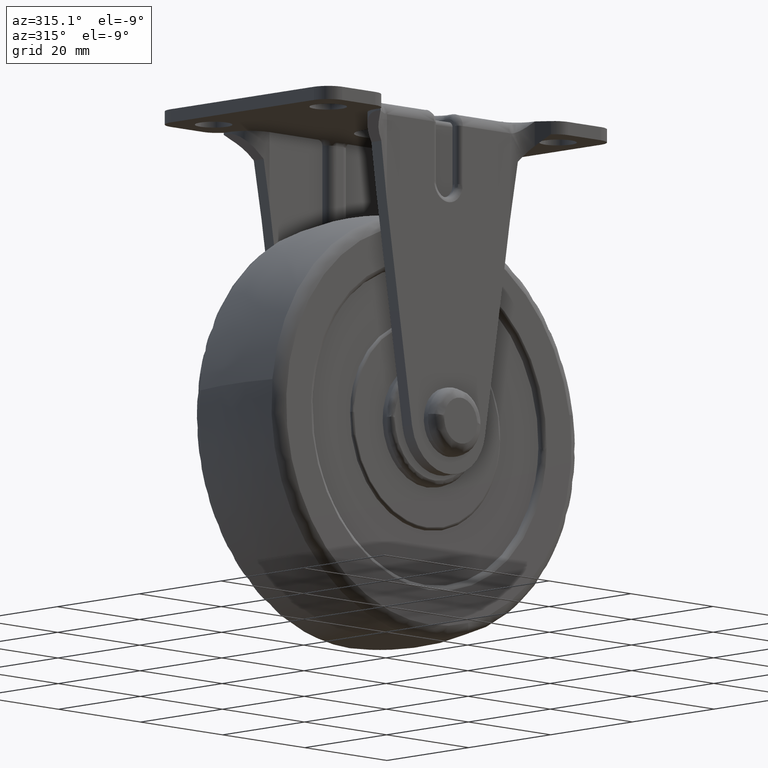
[diagram: clean part render]
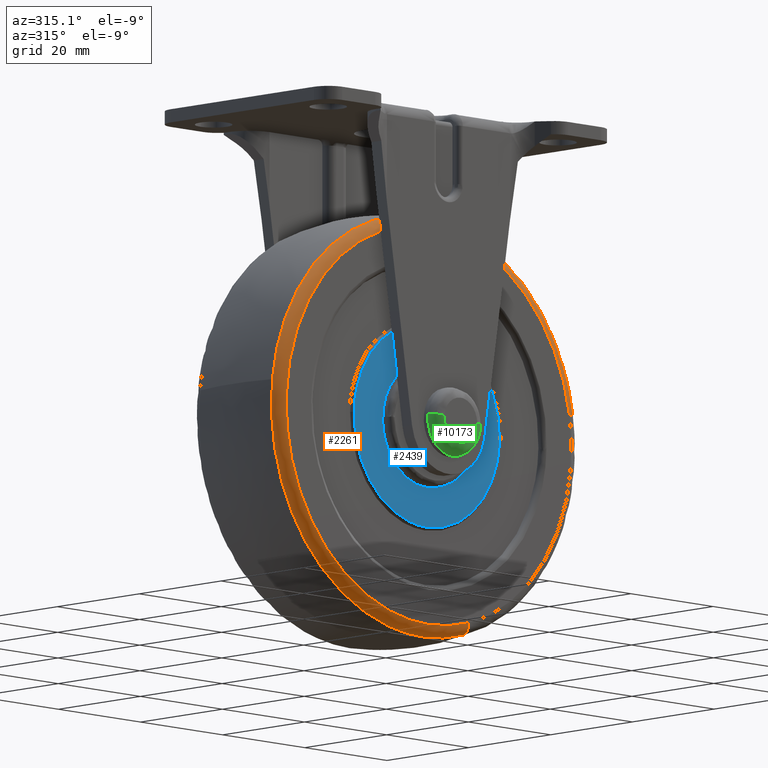
[diagram: same view with three faces highlighted in distinct colors, each labeled with its STEP entity id]
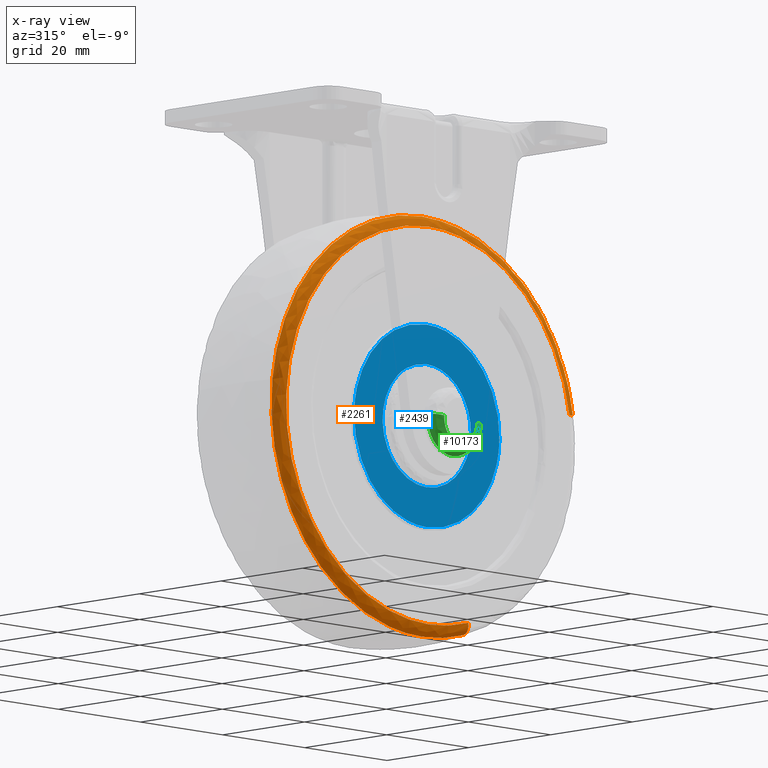
[diagram: x-ray of the same camera — body ghosted, the three highlighted faces saturated]
A machine part, auxiliary view with three faces highlighted in distinct colors.
The next image is the same camera in x-ray (body ghosted, the three faces saturated) — at least one of them is partly hidden behind the body in this view.
Their STEP definitions:

[orange] entity #2261 — the highlighted face is a freeform B-spline surface patch.
#2050=CARTESIAN_POINT('',(9.570434723366091,-10.499999999999940,-33.397186574668027));
#2051=VERTEX_POINT('',#2050);
#2052=CARTESIAN_POINT('',(34.278856995425983,-10.499999999999940,5.650243789186302));
#2053=VERTEX_POINT('',#2052);
#2069=CARTESIAN_POINT('',(10.112679845830209,-8.854166560661236,-35.289416348629373));
#2070=VERTEX_POINT('',#2069);
#2071=CARTESIAN_POINT('',(10.112679845830208,-8.854166560661236,-35.289416348629373));
#2072=CARTESIAN_POINT('',(10.031103170820018,-10.499999421205965,-35.004744699541618));
#2073=CARTESIAN_POINT('',(9.570434723366091,-10.499999999999940,-33.397186574668041));
#2081=(BOUNDED_CURVE()B_SPLINE_CURVE(2,(#2071,#2072,#2073),.UNSPECIFIED.,.F.,.U.)B_SPLINE_CURVE_WITH_KNOTS((3,3),(-1.706834369068990,-0.290855997036856),.UNSPECIFIED.)CURVE()GEOMETRIC_REPRESENTATION_ITEM()RATIONAL_B_SPLINE_CURVE((0.857224178663694,0.657882009826344,0.857875544032765))REPRESENTATION_ITEM(''));
#2082=EDGE_CURVE('',#2070,#2051,#2081,.T.);
#2084=CARTESIAN_POINT('',(36.221041102330183,-8.854163416198592,5.970377382871167));
#2085=VERTEX_POINT('',#2084);
#2101=CARTESIAN_POINT('',(36.221041102330176,-8.854163416198592,5.970377382871167));
#2102=CARTESIAN_POINT('',(35.928856563246185,-10.499999423787354,5.922216095650505));
#2103=CARTESIAN_POINT('',(34.278856995425976,-10.499999999999940,5.650243789186302));
#2111=(BOUNDED_CURVE()B_SPLINE_CURVE(2,(#2101,#2102,#2103),.UNSPECIFIED.,.F.,.U.)B_SPLINE_CURVE_WITH_KNOTS((3,3),(-1.706836109126086,-0.290855995331821),.UNSPECIFIED.)CURVE()GEOMETRIC_REPRESENTATION_ITEM()RATIONAL_B_SPLINE_CURVE((0.895848160298814,0.687523573927154,0.896528362368272))REPRESENTATION_ITEM(''));
#2112=EDGE_CURVE('',#2085,#2053,#2111,.T.);
#2117=CARTESIAN_POINT('',(36.239267967897682,-8.728840508037802,5.973381748909313));
#2118=CARTESIAN_POINT('',(30.265886218988360,-8.728840508037802,42.212649716806986));
#2119=CARTESIAN_POINT('',(-5.973381748909311,-8.728840508037802,36.239267967897682));
#2120=CARTESIAN_POINT('',(-42.212649716806986,-8.728840508037802,30.265886218988360));
#2121=CARTESIAN_POINT('',(-36.239267967897682,-8.728840508037802,-5.973381748909310));
#2122=CARTESIAN_POINT('',(-30.265886218988360,-8.728840508037802,-42.212649716806986));
#2123=CARTESIAN_POINT('',(5.973381748909307,-8.728840508037802,-36.239267967897682));
#2124=CARTESIAN_POINT('',(8.072570943417405,-8.728840508037802,-35.893254951489901));
#2125=CARTESIAN_POINT('',(10.117767890513576,-8.728840508037804,-35.307174983011464));
#2126=CARTESIAN_POINT('',(36.024785831171194,-10.616169513234572,5.938028284205667));
#2127=CARTESIAN_POINT('',(30.086757546965526,-10.616169513234572,41.962814115376865));
#2128=CARTESIAN_POINT('',(-5.938028284205664,-10.616169513234572,36.024785831171194));
#2129=CARTESIAN_POINT('',(-41.962814115376865,-10.616169513234572,30.086757546965526));
#2130=CARTESIAN_POINT('',(-36.024785831171194,-10.616169513234572,-5.938028284205663));
#2131=CARTESIAN_POINT('',(-30.086757546965526,-10.616169513234572,-41.962814115376865));
#2132=CARTESIAN_POINT('',(5.938028284205663,-10.616169513234572,-36.024785831171194));
#2133=CARTESIAN_POINT('',(8.024793425771241,-10.616169513234578,-35.680820693080399));
#2134=CARTESIAN_POINT('',(10.057885873084794,-10.616169513234574,-35.098209439368567));
#2135=CARTESIAN_POINT('',(34.154027922020006,-10.495994616986845,5.629667995000861));
#2136=CARTESIAN_POINT('',(28.524359927019141,-10.495994616986843,39.783695917020864));
#2137=CARTESIAN_POINT('',(-5.629667995000857,-10.495994616986845,34.154027922020006));
#2138=CARTESIAN_POINT('',(-39.783695917020864,-10.495994616986843,28.524359927019155));
#2139=CARTESIAN_POINT('',(-34.154027922020006,-10.495994616986845,-5.629667995000856));
#2140=CARTESIAN_POINT('',(-28.524359927019155,-10.495994616986843,-39.783695917020864));
#2141=CARTESIAN_POINT('',(5.629667995000854,-10.495994616986845,-34.154027922020006));
#2142=CARTESIAN_POINT('',(7.608067956786605,-10.495994616986843,-33.827924805526521));
#2143=CARTESIAN_POINT('',(9.535582433597517,-10.495994616986842,-33.275568405124595));
#2151=(BOUNDED_SURFACE()B_SPLINE_SURFACE(2,2,((#2117,#2126,#2135),(#2118,#2127,#2136),(#2119,#2128,#2137),(#2120,#2129,#2138),(#2121,#2130,#2139),(#2122,#2131,#2140),(#2123,#2132,#2141),(#2124,#2133,#2142),(#2125,#2134,#2143)),.UNSPECIFIED.,.F.,.F.,.U.)B_SPLINE_SURFACE_WITH_KNOTS((3,2,2,2,3),(3,3),(0.0,60.853390568270711,121.706781136541390,182.560171704812210,187.428441934673290),(0.0,3.193964959743093),.UNSPECIFIED.)GEOMETRIC_REPRESENTATION_ITEM()RATIONAL_B_SPLINE_SURFACE(((0.917701442166205,0.665636364178354,0.918449499708622),(0.648912912860398,0.470675986914873,0.649441869421358),(0.917701442166205,0.665636364178354,0.918449499708622),(0.648912912860398,0.470675986914873,0.649441869421358),(0.917701442166205,0.665636364178354,0.918449499708622),(0.648912912860398,0.470675986914873,0.649441869421358),(0.917701442166205,0.665636364178354,0.918449499708622),(0.896198364307633,0.650039537251028,0.896928893775190),(0.878135778188690,0.636938202111474,0.878851584072779)))REPRESENTATION_ITEM('')SURFACE());
#2152=CARTESIAN_POINT('',(0.0,-10.500000000000000,-34.741406003723299));
#2153=VERTEX_POINT('',#2152);
#2154=CARTESIAN_POINT('',(0.0,-10.500000000000000,-34.741406003723299));
#2155=CARTESIAN_POINT('',(4.879618814083505,-10.500000000000000,-34.741406003723306));
#2156=CARTESIAN_POINT('',(9.570434723366091,-10.499999999999940,-33.397186574668034));
#2164=(BOUNDED_CURVE()B_SPLINE_CURVE(2,(#2154,#2155,#2156),.UNSPECIFIED.,.F.,.U.)B_SPLINE_CURVE_WITH_KNOTS((3,3),(0.0,0.046928272030848),.UNSPECIFIED.)CURVE()GEOMETRIC_REPRESENTATION_ITEM()RATIONAL_B_SPLINE_CURVE((1.0,0.945020109406127,0.910681108908378))REPRESENTATION_ITEM(''));
#2165=EDGE_CURVE('',#2153,#2051,#2164,.T.);
#2166=ORIENTED_EDGE('',*,*,#2165,.F.);
#2167=CARTESIAN_POINT('',(0.0,-10.500000000000000,34.741406003723299));
#2168=VERTEX_POINT('',#2167);
#2169=CARTESIAN_POINT('',(0.0,-10.500000000000000,34.741406003723299));
#2170=CARTESIAN_POINT('',(-34.741406003723299,-10.500000000000002,34.741406003723299));
#2171=CARTESIAN_POINT('',(-34.741406003723299,-10.500000000000000,1.211545E-015));
#2172=CARTESIAN_POINT('',(-34.741406003723299,-10.500000000000002,-34.741406003723299));
#2173=CARTESIAN_POINT('',(0.0,-10.500000000000000,-34.741406003723299));
#2181=(BOUNDED_CURVE()B_SPLINE_CURVE(2,(#2169,#2170,#2171,#2172,#2173),.UNSPECIFIED.,.F.,.U.)B_SPLINE_CURVE_WITH_KNOTS((3,2,3),(0.500000000000000,0.750000000000000,1.0),.UNSPECIFIED.)CURVE()GEOMETRIC_REPRESENTATION_ITEM()RATIONAL_B_SPLINE_CURVE((1.0,0.707106781186548,1.0,0.707106781186548,1.0))REPRESENTATION_ITEM(''));
#2182=EDGE_CURVE('',#2168,#2153,#2181,.T.);
#2183=ORIENTED_EDGE('',*,*,#2182,.F.);
#2184=CARTESIAN_POINT('',(34.278856995425976,-10.499999999999940,5.650243789186302));
#2185=CARTESIAN_POINT('',(29.483709975488914,-10.500000000000000,34.741406003723299));
#2186=CARTESIAN_POINT('',(0.0,-10.500000000000000,34.741406003723299));
#2194=(BOUNDED_CURVE()B_SPLINE_CURVE(2,(#2184,#2185,#2186),.UNSPECIFIED.,.F.,.U.)B_SPLINE_CURVE_WITH_KNOTS((3,3),(0.277993891203205,0.500000000000000),.UNSPECIFIED.)CURVE()GEOMETRIC_REPRESENTATION_ITEM()RATIONAL_B_SPLINE_CURVE((0.941751131918910,0.739903664793028,1.0))REPRESENTATION_ITEM(''));
#2195=EDGE_CURVE('',#2053,#2168,#2194,.T.);
#2196=ORIENTED_EDGE('',*,*,#2195,.F.);
#2197=ORIENTED_EDGE('',*,*,#2112,.F.);
#2198=CARTESIAN_POINT('',(0.0,-8.854160999954726,36.709798075842002));
#2199=VERTEX_POINT('',#2198);
#2200=CARTESIAN_POINT('',(36.221041102330176,-8.854163416198592,5.970377382871167));
#2201=CARTESIAN_POINT('',(31.154209102596162,-8.854160999954724,36.709798075842002));
#2202=CARTESIAN_POINT('',(0.0,-8.854160999954726,36.709798075842002));
#2210=(BOUNDED_CURVE()B_SPLINE_CURVE(2,(#2200,#2201,#2202),.UNSPECIFIED.,.F.,.U.)B_SPLINE_CURVE_WITH_KNOTS((3,3),(0.277993888548403,0.500000000000000),.UNSPECIFIED.)CURVE()GEOMETRIC_REPRESENTATION_ITEM()RATIONAL_B_SPLINE_CURVE((0.941751136746390,0.739903661682735,1.0))REPRESENTATION_ITEM(''));
#2211=EDGE_CURVE('',#2085,#2199,#2210,.T.);
#2212=ORIENTED_EDGE('',*,*,#2211,.T.);
#2213=CARTESIAN_POINT('',(-36.464271100865403,-8.854163213005258,4.238652924782500));
#2214=VERTEX_POINT('',#2213);
#2215=CARTESIAN_POINT('',(0.0,-8.854160999954726,36.709798075842002));
#2216=CARTESIAN_POINT('',(-32.689783981103403,-8.854162106479993,36.709797601920478));
#2217=CARTESIAN_POINT('',(-36.464271100865403,-8.854163213005258,4.238652924782500));
#2225=(BOUNDED_CURVE()B_SPLINE_CURVE(2,(#2215,#2216,#2217),.UNSPECIFIED.,.F.,.U.)B_SPLINE_CURVE_WITH_KNOTS((3,3),(0.500000000000000,0.730000072241216),.UNSPECIFIED.)CURVE()GEOMETRIC_REPRESENTATION_ITEM()RATIONAL_B_SPLINE_CURVE((1.0,0.730538154055775,0.956886260378935))REPRESENTATION_ITEM(''));
#2226=EDGE_CURVE('',#2199,#2214,#2225,.T.);
#2227=ORIENTED_EDGE('',*,*,#2226,.T.);
#2228=CARTESIAN_POINT('',(0.0,-8.854166666666620,-36.709797056249400));
#2229=VERTEX_POINT('',#2228);
#2230=CARTESIAN_POINT('',(-36.464271100865403,-8.854163213005258,4.238652924782500));
#2231=CARTESIAN_POINT('',(-36.709797657576779,-8.854163302079160,2.126437635255870));
#2232=CARTESIAN_POINT('',(-36.709797639699580,-8.854163402106890,0.000000067820988));
#2233=CARTESIAN_POINT('',(-36.709797331076132,-8.854165128937567,-36.709797024303192));
#2234=CARTESIAN_POINT('',(0.0,-8.854166666666620,-36.709797056249400));
#2242=(BOUNDED_CURVE()B_SPLINE_CURVE(2,(#2230,#2231,#2232,#2233,#2234),.UNSPECIFIED.,.F.,.U.)B_SPLINE_CURVE_WITH_KNOTS((3,2,3),(0.730000072241216,0.750000000000000,1.0),.UNSPECIFIED.)CURVE()GEOMETRIC_REPRESENTATION_ITEM()RATIONAL_B_SPLINE_CURVE((0.956886260378935,0.976568627130773,1.0,0.707106781186548,1.0))REPRESENTATION_ITEM(''));
#2243=EDGE_CURVE('',#2214,#2229,#2242,.T.);
#2244=ORIENTED_EDGE('',*,*,#2243,.T.);
#2245=CARTESIAN_POINT('',(0.0,-8.854166666666620,-36.709797056249400));
#2246=CARTESIAN_POINT('',(5.156090005455261,-8.854166666666618,-36.709797056249400));
#2247=CARTESIAN_POINT('',(10.112679845830208,-8.854166560661236,-35.289416348629373));
#2255=(BOUNDED_CURVE()B_SPLINE_CURVE(2,(#2245,#2246,#2247),.UNSPECIFIED.,.F.,.U.)B_SPLINE_CURVE_WITH_KNOTS((3,3),(0.0,0.046928272004704),.UNSPECIFIED.)CURVE()GEOMETRIC_REPRESENTATION_ITEM()RATIONAL_B_SPLINE_CURVE((1.0,0.945020109436757,0.910681108946639))REPRESENTATION_ITEM(''));
#2256=EDGE_CURVE('',#2229,#2070,#2255,.T.);
#2257=ORIENTED_EDGE('',*,*,#2256,.T.);
#2258=ORIENTED_EDGE('',*,*,#2082,.T.);
#2259=EDGE_LOOP('',(#2166,#2183,#2196,#2197,#2212,#2227,#2244,#2257,#2258));
#2260=FACE_OUTER_BOUND('',#2259,.T.);
#2261=ADVANCED_FACE('',(#2260),#2151,.T.);

[blue] entity #2439 — the highlighted face is a freeform B-spline surface patch.
#66=CARTESIAN_POINT('',(-7.034148510529811,-9.999999999999623,-8.129160764297716));
#67=VERTEX_POINT('',#66);
#68=CARTESIAN_POINT('',(0.0,-10.0,-10.750000000000000));
#69=VERTEX_POINT('',#68);
#70=CARTESIAN_POINT('',(-7.034148510529811,-9.999999999999623,-8.129160764297716));
#71=CARTESIAN_POINT('',(-4.005320863160247,-9.999999999999998,-10.750000000000000));
#72=CARTESIAN_POINT('',(0.0,-10.0,-10.750000000000000));
#80=(BOUNDED_CURVE()B_SPLINE_CURVE(2,(#70,#71,#72),.UNSPECIFIED.,.F.,.U.)B_SPLINE_CURVE_WITH_KNOTS((3,3),(0.885882172029833,1.0),.UNSPECIFIED.)CURVE()GEOMETRIC_REPRESENTATION_ITEM()RATIONAL_B_SPLINE_CURVE((0.854663307506657,0.866302648167272,1.0))REPRESENTATION_ITEM(''));
#81=EDGE_CURVE('',#67,#69,#80,.T.);
#83=CARTESIAN_POINT('',(0.0,-10.0,10.750000000000000));
#84=VERTEX_POINT('',#83);
#85=CARTESIAN_POINT('',(0.0,-10.0,-10.750000000000000));
#86=CARTESIAN_POINT('',(10.750000000000000,-10.000000000000002,-10.749999999999998));
#87=CARTESIAN_POINT('',(10.750000000000000,-10.0,1.211545E-015));
#88=CARTESIAN_POINT('',(10.750000000000000,-10.000000000000002,10.750000000000000));
#89=CARTESIAN_POINT('',(0.0,-10.0,10.750000000000000));
#97=(BOUNDED_CURVE()B_SPLINE_CURVE(2,(#85,#86,#87,#88,#89),.UNSPECIFIED.,.F.,.U.)B_SPLINE_CURVE_WITH_KNOTS((3,2,3),(0.0,0.250000000000000,0.500000000000000),.UNSPECIFIED.)CURVE()GEOMETRIC_REPRESENTATION_ITEM()RATIONAL_B_SPLINE_CURVE((1.0,0.707106781186548,1.0,0.707106781186548,1.0))REPRESENTATION_ITEM(''));
#98=EDGE_CURVE('',#69,#84,#97,.T.);
#100=CARTESIAN_POINT('',(-7.262593903906474,-10.0,7.925732129395948));
#101=VERTEX_POINT('',#100);
#102=CARTESIAN_POINT('',(0.0,-10.0,10.750000000000000));
#103=CARTESIAN_POINT('',(-4.180445721006389,-9.999999999999998,10.750000000000000));
#104=CARTESIAN_POINT('',(-7.262593903906474,-10.0,7.925732129395949));
#112=(BOUNDED_CURVE()B_SPLINE_CURVE(2,(#102,#103,#104),.UNSPECIFIED.,.F.,.U.)B_SPLINE_CURVE_WITH_KNOTS((3,3),(0.500000000000000,0.618415193314011),.UNSPECIFIED.)CURVE()GEOMETRIC_REPRESENTATION_ITEM()RATIONAL_B_SPLINE_CURVE((1.0,0.861267971495369,0.853959782784504))REPRESENTATION_ITEM(''));
#113=EDGE_CURVE('',#84,#101,#112,.T.);
#210=CARTESIAN_POINT('',(-7.262593903906474,-10.0,7.925732129395949));
#211=CARTESIAN_POINT('',(-10.750000000000000,-10.0,4.730113877298298));
#212=CARTESIAN_POINT('',(-10.750000000000000,-10.0,1.211545E-015));
#213=CARTESIAN_POINT('',(-10.750000000000002,-10.000000000000002,-4.913841006470554));
#214=CARTESIAN_POINT('',(-7.034148510529811,-9.999999999999623,-8.129160764297716));
#222=(BOUNDED_CURVE()B_SPLINE_CURVE(2,(#210,#211,#212,#213,#214),.UNSPECIFIED.,.F.,.U.)B_SPLINE_CURVE_WITH_KNOTS((3,2,3),(0.618415193314011,0.750000000000000,0.885882172029833),.UNSPECIFIED.)CURVE()GEOMETRIC_REPRESENTATION_ITEM()RATIONAL_B_SPLINE_CURVE((0.853959782784504,0.845838809691179,1.0,0.840804133019275,0.854663307506657))REPRESENTATION_ITEM(''));
#223=EDGE_CURVE('',#101,#67,#222,.T.);
#921=CARTESIAN_POINT('',(17.694411160923838,-10.000000000000050,-0.444802714950241));
#922=VERTEX_POINT('',#921);
#936=CARTESIAN_POINT('',(0.0,-10.0,-17.700001000000000));
#937=VERTEX_POINT('',#936);
#938=CARTESIAN_POINT('',(0.0,-10.0,-17.700001000000000));
#939=CARTESIAN_POINT('',(17.260649383188348,-10.0,-17.700000999999993));
#940=CARTESIAN_POINT('',(17.694411160923842,-10.000000000000053,-0.444802714950241));
#948=(BOUNDED_CURVE()B_SPLINE_CURVE(2,(#938,#939,#940),.UNSPECIFIED.,.F.,.U.)B_SPLINE_CURVE_WITH_KNOTS((3,3),(0.0,0.245579891765885),.UNSPECIFIED.)CURVE()GEOMETRIC_REPRESENTATION_ITEM()RATIONAL_B_SPLINE_CURVE((1.0,0.712285260099322,0.989826157672711))REPRESENTATION_ITEM(''));
#949=EDGE_CURVE('',#937,#922,#948,.T.);
#951=CARTESIAN_POINT('',(-17.694411160923849,-10.000000000000050,0.444802714950241));
#952=VERTEX_POINT('',#951);
#953=CARTESIAN_POINT('',(-17.694411160923849,-10.000000000000053,0.444802714950241));
#954=CARTESIAN_POINT('',(-17.700000999999997,-9.999999999999998,0.222436481349253));
#955=CARTESIAN_POINT('',(-17.700001000000000,-10.0,1.211545E-015));
#956=CARTESIAN_POINT('',(-17.700000999999997,-10.000000000000002,-17.700000999999997));
#957=CARTESIAN_POINT('',(0.0,-10.0,-17.700001000000000));
#965=(BOUNDED_CURVE()B_SPLINE_CURVE(2,(#953,#954,#955,#956,#957),.UNSPECIFIED.,.F.,.U.)B_SPLINE_CURVE_WITH_KNOTS((3,2,3),(0.745579891765885,0.750000000000000,1.0),.UNSPECIFIED.)CURVE()GEOMETRIC_REPRESENTATION_ITEM()RATIONAL_B_SPLINE_CURVE((0.989826157672711,0.994821521087225,1.0,0.707106781186548,1.0))REPRESENTATION_ITEM(''));
#966=EDGE_CURVE('',#952,#937,#965,.T.);
#1023=CARTESIAN_POINT('',(0.0,-10.0,17.700001000000000));
#1024=VERTEX_POINT('',#1023);
#1025=CARTESIAN_POINT('',(0.0,-10.0,17.700001000000000));
#1026=CARTESIAN_POINT('',(-17.260649383188387,-10.0,17.700001000000007));
#1027=CARTESIAN_POINT('',(-17.694411160923845,-10.000000000000053,0.444802714950241));
#1035=(BOUNDED_CURVE()B_SPLINE_CURVE(2,(#1025,#1026,#1027),.UNSPECIFIED.,.F.,.U.)B_SPLINE_CURVE_WITH_KNOTS((3,3),(0.500000000000000,0.745579891765886),.UNSPECIFIED.)CURVE()GEOMETRIC_REPRESENTATION_ITEM()RATIONAL_B_SPLINE_CURVE((1.0,0.712285260099322,0.989826157672712))REPRESENTATION_ITEM(''));
#1036=EDGE_CURVE('',#1024,#952,#1035,.T.);
#1038=CARTESIAN_POINT('',(17.694411160923842,-10.000000000000053,-0.444802714950241));
#1039=CARTESIAN_POINT('',(17.700001000000000,-9.999999999999998,-0.222436481349253));
#1040=CARTESIAN_POINT('',(17.700001000000000,-10.0,1.211545E-015));
#1041=CARTESIAN_POINT('',(17.700000999999997,-10.000000000000002,17.700000999999997));
#1042=CARTESIAN_POINT('',(0.0,-10.0,17.700001000000000));
#1050=(BOUNDED_CURVE()B_SPLINE_CURVE(2,(#1038,#1039,#1040,#1041,#1042),.UNSPECIFIED.,.F.,.U.)B_SPLINE_CURVE_WITH_KNOTS((3,2,3),(0.245579891765885,0.250000000000000,0.500000000000000),.UNSPECIFIED.)CURVE()GEOMETRIC_REPRESENTATION_ITEM()RATIONAL_B_SPLINE_CURVE((0.989826157672711,0.994821521087225,1.0,0.707106781186548,1.0))REPRESENTATION_ITEM(''));
#1051=EDGE_CURVE('',#922,#1024,#1050,.T.);
#2422=CARTESIAN_POINT('',(-19.462081976466109,-10.0,19.468231031287932));
#2423=CARTESIAN_POINT('',(-19.462081976466109,-10.0,-19.468231980789970));
#2424=CARTESIAN_POINT('',(19.462081027263931,-10.0,19.468231031287932));
#2425=CARTESIAN_POINT('',(19.462081027263931,-10.0,-19.468231980789970));
#2426=B_SPLINE_SURFACE_WITH_KNOTS('',1,1,((#2422,#2424),(#2423,#2425)),.UNSPECIFIED.,.F.,.F.,.U.,(2,2),(2,2),(0.0,38.936463012077887),(0.0,38.924163003730037),.UNSPECIFIED.);
#2427=ORIENTED_EDGE('',*,*,#949,.T.);
#2428=ORIENTED_EDGE('',*,*,#1051,.T.);
#2429=ORIENTED_EDGE('',*,*,#1036,.T.);
#2430=ORIENTED_EDGE('',*,*,#966,.T.);
#2431=EDGE_LOOP('',(#2427,#2428,#2429,#2430));
#2432=FACE_OUTER_BOUND('',#2431,.T.);
#2433=ORIENTED_EDGE('',*,*,#98,.F.);
#2434=ORIENTED_EDGE('',*,*,#81,.F.);
#2435=ORIENTED_EDGE('',*,*,#223,.F.);
#2436=ORIENTED_EDGE('',*,*,#113,.F.);
#2437=EDGE_LOOP('',(#2433,#2434,#2435,#2436));
#2438=FACE_BOUND('',#2437,.T.);
#2439=ADVANCED_FACE('',(#2432,#2438),#2426,.T.);

[green] entity #10173 — the highlighted face is a freeform B-spline surface patch.
#9504=CARTESIAN_POINT('',(3.735085302261918,-16.300003628506129,-4.695650943672648));
#9505=VERTEX_POINT('',#9504);
#9506=CARTESIAN_POINT('',(5.999999999999696,-16.300003629176839,-9.326167E-014));
#9507=VERTEX_POINT('',#9506);
#9508=CARTESIAN_POINT('',(3.735085302261918,-16.300003628506126,-4.695650943672648));
#9509=CARTESIAN_POINT('',(5.999999999999609,-16.300003628762845,-2.894058427561166));
#9510=CARTESIAN_POINT('',(5.999999999999696,-16.300003629176839,-9.326167E-014));
#9518=(BOUNDED_CURVE()B_SPLINE_CURVE(2,(#9508,#9509,#9510),.UNSPECIFIED.,.F.,.U.)B_SPLINE_CURVE_WITH_KNOTS((3,3),(0.107863796232113,0.249999999999995),.UNSPECIFIED.)CURVE()GEOMETRIC_REPRESENTATION_ITEM()RATIONAL_B_SPLINE_CURVE((0.856305644714089,0.833477079073996,0.999999999999987))REPRESENTATION_ITEM(''));
#9519=EDGE_CURVE('',#9505,#9507,#9518,.T.);
#9562=CARTESIAN_POINT('',(-4.695650918952271,-16.300003628318549,-3.735085333339771));
#9563=VERTEX_POINT('',#9562);
#9569=CARTESIAN_POINT('',(-5.959869832689594,-16.300003629149341,0.692785376139581));
#9570=VERTEX_POINT('',#9569);
#9571=CARTESIAN_POINT('',(-5.959869832689594,-16.300003629149337,0.692785376139581));
#9572=CARTESIAN_POINT('',(-5.999999999999701,-16.300003628318549,0.347554974766209));
#9573=CARTESIAN_POINT('',(-5.999999999999700,-16.300003628318549,1.647096E-015));
#9574=CARTESIAN_POINT('',(-5.999999999999701,-16.300003628318546,-2.095292018209868));
#9575=CARTESIAN_POINT('',(-4.695650918952271,-16.300003628318557,-3.735085333339771));
#9583=(BOUNDED_CURVE()B_SPLINE_CURVE(2,(#9571,#9572,#9573,#9574,#9575),.UNSPECIFIED.,.F.,.U.)B_SPLINE_CURVE_WITH_KNOTS((3,2,3),(0.729999999989943,0.750000000000000,0.857863797233977),.UNSPECIFIED.)CURVE()GEOMETRIC_REPRESENTATION_ITEM()RATIONAL_B_SPLINE_CURVE((0.956886118170865,0.976568542483141,1.0,0.873629700938795,0.856305644392269))REPRESENTATION_ITEM(''));
#9584=EDGE_CURVE('',#9570,#9563,#9583,.T.);
#9631=CARTESIAN_POINT('',(0.0,-16.300003628318549,-5.999999999999698));
#9632=VERTEX_POINT('',#9631);
#9633=CARTESIAN_POINT('',(0.0,-16.300003628318549,-5.999999999999698));
#9634=CARTESIAN_POINT('',(2.095291995933193,-16.300003628318553,-5.999999999999698));
#9635=CARTESIAN_POINT('',(3.735085302261918,-16.300003628506126,-4.695650943672648));
#9643=(BOUNDED_CURVE()B_SPLINE_CURVE(2,(#9633,#9634,#9635),.UNSPECIFIED.,.F.,.U.)B_SPLINE_CURVE_WITH_KNOTS((3,3),(0.0,0.107863796232113),.UNSPECIFIED.)CURVE()GEOMETRIC_REPRESENTATION_ITEM()RATIONAL_B_SPLINE_CURVE((1.0,0.873629702112552,0.856305644714089))REPRESENTATION_ITEM(''));
#9644=EDGE_CURVE('',#9632,#9505,#9643,.T.);
#9646=CARTESIAN_POINT('',(-4.695650918952271,-16.300003628318557,-3.735085333339771));
#9647=CARTESIAN_POINT('',(-2.894058403086417,-16.300003628318549,-5.999999999999698));
#9648=CARTESIAN_POINT('',(0.0,-16.300003628318549,-5.999999999999698));
#9656=(BOUNDED_CURVE()B_SPLINE_CURVE(2,(#9646,#9647,#9648),.UNSPECIFIED.,.F.,.U.)B_SPLINE_CURVE_WITH_KNOTS((3,3),(0.857863797233977,1.0),.UNSPECIFIED.)CURVE()GEOMETRIC_REPRESENTATION_ITEM()RATIONAL_B_SPLINE_CURVE((0.856305644392269,0.833477080247752,1.0))REPRESENTATION_ITEM(''));
#9657=EDGE_CURVE('',#9563,#9632,#9656,.T.);
#10078=CARTESIAN_POINT('',(-5.955086818130266,-16.161301849070693,0.692228709683873));
#10079=CARTESIAN_POINT('',(-5.995184700906173,-16.161301849070689,0.347275705260244));
#10080=CARTESIAN_POINT('',(-5.995184700906175,-16.161301849070689,2.101811E-015));
#10081=CARTESIAN_POINT('',(-5.995184700906175,-16.161301849070693,-5.995184700906171));
#10082=CARTESIAN_POINT('',(-7.341741E-016,-16.161301849070689,-5.995184700906172));
#10083=CARTESIAN_POINT('',(5.995184700906173,-16.161301849070693,-5.995184700906173));
#10084=CARTESIAN_POINT('',(5.995184700906175,-16.161301849070689,6.334623E-016));
#10085=CARTESIAN_POINT('',(-6.113506785808837,-18.455481543839948,0.710643697267333));
#10086=CARTESIAN_POINT('',(-6.154671370966647,-18.455481543839948,0.356514093831740));
#10087=CARTESIAN_POINT('',(-6.154671370966645,-18.455481543839941,2.111576E-015));
#10088=CARTESIAN_POINT('',(-6.154671370966647,-18.455481543839941,-6.154671370966642));
#10089=CARTESIAN_POINT('',(-7.537050E-016,-18.455481543839941,-6.154671370966645));
#10090=CARTESIAN_POINT('',(6.154671370966647,-18.455481543839941,-6.154671370966645));
#10091=CARTESIAN_POINT('',(6.154671370966645,-18.455481543839941,6.041660E-016));
#10092=CARTESIAN_POINT('',(-3.834730858931828,-18.295135611118525,0.445755179652738));
#10093=CARTESIAN_POINT('',(-3.860551572072476,-18.295135611118514,0.223625432204345));
#10094=CARTESIAN_POINT('',(-3.860551572072478,-18.295135611118521,1.971106E-015));
#10095=CARTESIAN_POINT('',(-3.860551572072478,-18.295135611118511,-3.860551572072474));
#10096=CARTESIAN_POINT('',(-4.727656E-016,-18.295135611118521,-3.860551572072474));
#10097=CARTESIAN_POINT('',(3.860551572072475,-18.295135611118511,-3.860551572072474));
#10098=CARTESIAN_POINT('',(3.860551572072478,-18.295135611118521,1.025575E-015));
#10106=(BOUNDED_SURFACE()B_SPLINE_SURFACE(2,2,((#10078,#10085,#10092),(#10079,#10086,#10093),(#10080,#10087,#10094),(#10081,#10088,#10095),(#10082,#10089,#10096),(#10083,#10090,#10097),(#10084,#10091,#10098)),.UNSPECIFIED.,.F.,.F.,.U.)B_SPLINE_SURFACE_WITH_KNOTS((3,2,2,3),(3,3),(0.0,0.794651022016055,10.727798270204151,20.660945518392250),(0.0,3.644740725018497),.UNSPECIFIED.)GEOMETRIC_REPRESENTATION_ITEM()RATIONAL_B_SPLINE_SURFACE(((0.876475779619699,0.573569932033053,0.871620856583481),(0.894504209402347,0.585367822500240,0.889549424349295),(0.915966621911565,0.599412927647948,0.910892953526734),(0.647686209694202,0.423848945870745,0.644098584373797),(0.915966621911565,0.599412927647948,0.910892953526734),(0.647686209694202,0.423848945870745,0.644098584373797),(0.915966621911565,0.599412927647948,0.910892953526734)))REPRESENTATION_ITEM('')SURFACE());
#10107=ORIENTED_EDGE('',*,*,#9584,.T.);
#10108=ORIENTED_EDGE('',*,*,#9657,.T.);
#10109=ORIENTED_EDGE('',*,*,#9644,.T.);
#10110=ORIENTED_EDGE('',*,*,#9519,.T.);
#10111=CARTESIAN_POINT('',(4.000000000185819,-18.300003000000000,1.773286E-015));
#10112=VERTEX_POINT('',#10111);
#10113=CARTESIAN_POINT('',(5.999999999999696,-16.300003629176835,-9.326167E-014));
#10114=CARTESIAN_POINT('',(5.999999369964767,-18.300002999627953,1.748501E-015));
#10115=CARTESIAN_POINT('',(4.000000000185819,-18.300002999999997,1.773286E-015));
#10123=(BOUNDED_CURVE()B_SPLINE_CURVE(2,(#10113,#10114,#10115),.UNSPECIFIED.,.F.,.U.)B_SPLINE_CURVE_WITH_KNOTS((3,3),(-1.736412795040660,-0.276558718206761),.UNSPECIFIED.)CURVE()GEOMETRIC_REPRESENTATION_ITEM()RATIONAL_B_SPLINE_CURVE((0.888510292094172,0.626638784725906,0.883897567071161))REPRESENTATION_ITEM(''));
#10124=EDGE_CURVE('',#9507,#10112,#10123,.T.);
#10125=ORIENTED_EDGE('',*,*,#10124,.T.);
#10126=CARTESIAN_POINT('',(0.0,-18.300003000000000,-3.999999999999794));
#10127=VERTEX_POINT('',#10126);
#10128=CARTESIAN_POINT('',(0.0,-18.300003000000000,-3.999999999999794));
#10129=CARTESIAN_POINT('',(3.999999999999862,-18.300003000000011,-3.999999999999793));
#10130=CARTESIAN_POINT('',(4.000000000185819,-18.300003000000000,1.773286E-015));
#10138=(BOUNDED_CURVE()B_SPLINE_CURVE(2,(#10128,#10129,#10130),.UNSPECIFIED.,.F.,.U.)B_SPLINE_CURVE_WITH_KNOTS((3,3),(0.0,0.250000000000003),.UNSPECIFIED.)CURVE()GEOMETRIC_REPRESENTATION_ITEM()RATIONAL_B_SPLINE_CURVE((1.0,0.707106781186544,1.000000000000007))REPRESENTATION_ITEM(''));
#10139=EDGE_CURVE('',#10127,#10112,#10138,.T.);
#10140=ORIENTED_EDGE('',*,*,#10139,.F.);
#10141=CARTESIAN_POINT('',(-3.973246557495189,-18.300003000000000,0.461856918120530));
#10142=VERTEX_POINT('',#10141);
#10143=CARTESIAN_POINT('',(-3.973246557495190,-18.300002999999997,0.461856918120530));
#10144=CARTESIAN_POINT('',(-3.999999999999796,-18.300003000000000,0.231703316928191));
#10145=CARTESIAN_POINT('',(-3.999999999999795,-18.300003000000000,1.647096E-015));
#10146=CARTESIAN_POINT('',(-3.999999999999796,-18.300003000000007,-3.999999999999794));
#10147=CARTESIAN_POINT('',(0.0,-18.300003000000000,-3.999999999999794));
#10155=(BOUNDED_CURVE()B_SPLINE_CURVE(2,(#10143,#10144,#10145,#10146,#10147),.UNSPECIFIED.,.F.,.U.)B_SPLINE_CURVE_WITH_KNOTS((3,2,3),(0.729999999954760,0.750000000000000,1.0),.UNSPECIFIED.)CURVE()GEOMETRIC_REPRESENTATION_ITEM()RATIONAL_B_SPLINE_CURVE((0.956886118101616,0.976568542441921,1.0,0.707106781186548,1.0))REPRESENTATION_ITEM(''));
#10156=EDGE_CURVE('',#10142,#10127,#10155,.T.);
#10157=ORIENTED_EDGE('',*,*,#10156,.F.);
#10158=CARTESIAN_POINT('',(-5.959869832689594,-16.300003629149334,0.692785376139581));
#10159=CARTESIAN_POINT('',(-5.959869206943798,-18.300002995133806,0.692785303222264));
#10160=CARTESIAN_POINT('',(-3.973246557495189,-18.300002999999993,0.461856918120530));
#10168=(BOUNDED_CURVE()B_SPLINE_CURVE(2,(#10158,#10159,#10160),.UNSPECIFIED.,.F.,.U.)B_SPLINE_CURVE_WITH_KNOTS((3,3),(-1.736412795069122,-0.276558720520326),.UNSPECIFIED.)CURVE()GEOMETRIC_REPRESENTATION_ITEM()RATIONAL_B_SPLINE_CURVE((0.850203164384212,0.599621954616404,0.845789311052643))REPRESENTATION_ITEM(''));
#10169=EDGE_CURVE('',#9570,#10142,#10168,.T.);
#10170=ORIENTED_EDGE('',*,*,#10169,.F.);
#10171=EDGE_LOOP('',(#10107,#10108,#10109,#10110,#10125,#10140,#10157,#10170));
#10172=FACE_OUTER_BOUND('',#10171,.T.);
#10173=ADVANCED_FACE('',(#10172),#10106,.T.);